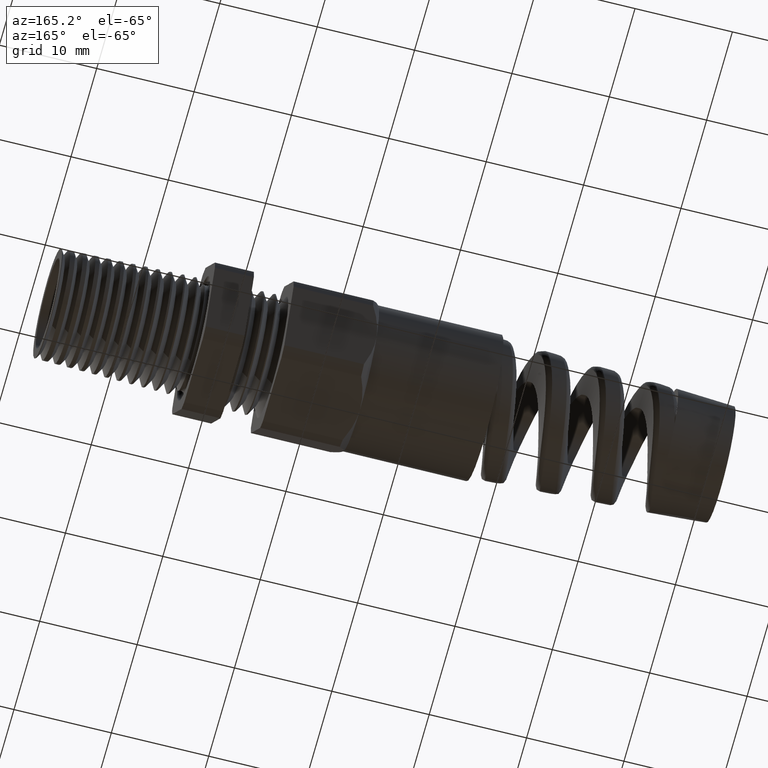
[diagram: clean part render]
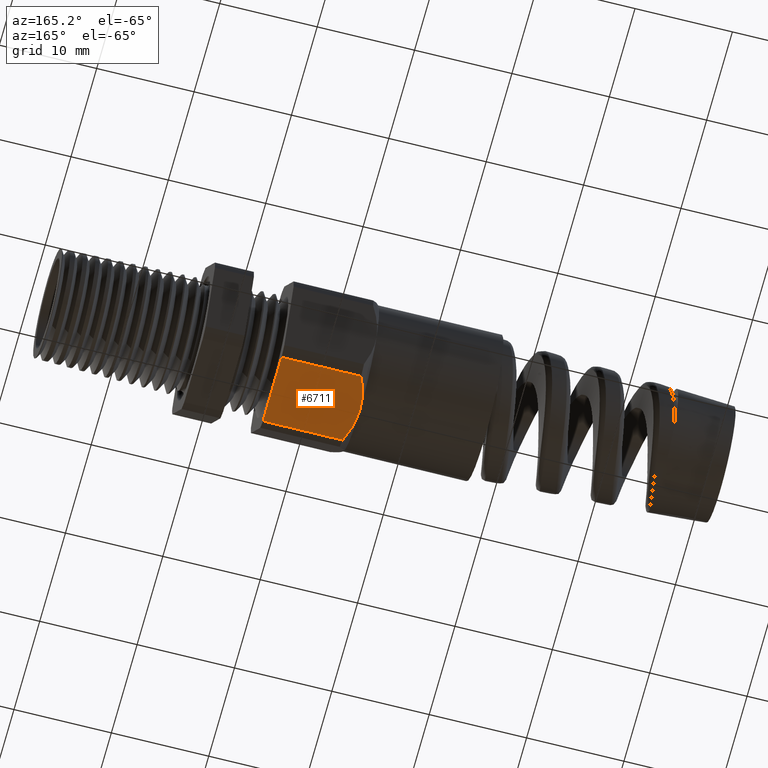
[diagram: same view with one face highlighted and labeled with its STEP entity id]
A machine part, auxiliary view. The second image highlights one B-rep face of the part: STEP entity #6711.
In plain terms, the highlighted planar face has unit normal (0, 0, -1).
Its self-contained STEP definition (entity closure, byte-faithful):
#558 = VERTEX_POINT ( 'NONE', #7945 ) ;
#2335 = DIRECTION ( 'NONE',  ( -1.000000000000000000, 0.0000000000000000000, 0.0000000000000000000 ) ) ;
#2336 = DIRECTION ( 'NONE',  ( 0.0000000000000000000, 0.0000000000000000000, -1.000000000000000000 ) ) ;
#2337 = CARTESIAN_POINT ( 'NONE',  ( 0.2800000000000001400, 0.1421214357512615400, -0.2950000000000000400 ) ) ;
#2338 = AXIS2_PLACEMENT_3D ( 'NONE', #2337, #2336, #2335 ) ;
#2340 = CARTESIAN_POINT ( 'NONE',  ( -0.9825196850393699300, 0.0000000000000000000, -0.2950000000000000400 ) ) ;
#2341 = CARTESIAN_POINT ( 'NONE',  ( -0.9825196850393699300, -0.02473358912122618900, -0.2950000000000001000 ) ) ;
#2342 = CARTESIAN_POINT ( 'NONE',  ( -0.9793819677769449700, -0.04889627699688063600, -0.2950000000000001000 ) ) ;
#2343 = CARTESIAN_POINT ( 'NONE',  ( -0.9680534100033613100, -0.09630224729656487700, -0.2950000000000001000 ) ) ;
#2344 = CARTESIAN_POINT ( 'NONE',  ( -0.9597914218120188200, -0.1197224029144733600, -0.2949999999999999800 ) ) ;
#2345 = CARTESIAN_POINT ( 'NONE',  ( -0.9500696850393698400, -0.1421214357512615700, -0.2950000000000000400 ) ) ;
#2346 = B_SPLINE_CURVE_WITH_KNOTS ( 'NONE', 3,
 ( #2345, #2344, #2343, #2342, #2341, #2340 ),
 .UNSPECIFIED., .F., .F.,
 ( 4, 2, 4 ),
 ( 0.005421624679763322800, 0.007269778929319367300, 0.009117933178875411000 ),
 .UNSPECIFIED. ) ;
#2347 = PLANE ( 'NONE',  #2338 ) ;
#2348 = FACE_OUTER_BOUND ( 'NONE', #6712, .T. ) ;
#2349 = CARTESIAN_POINT ( 'NONE',  ( -0.9500696850393698400, 0.1421214357512616000, -0.2950000000000000400 ) ) ;
#2350 = CARTESIAN_POINT ( 'NONE',  ( -0.9597825056839449600, 0.1197429458123298200, -0.2950000000000000400 ) ) ;
#2351 = CARTESIAN_POINT ( 'NONE',  ( -0.9680416460965800600, 0.09633948997954479300, -0.2949999999999999800 ) ) ;
#2352 = CARTESIAN_POINT ( 'NONE',  ( -0.9793751329988079600, 0.04893684351397717400, -0.2950000000000001500 ) ) ;
#2353 = CARTESIAN_POINT ( 'NONE',  ( -0.9825196850393699300, 0.02471049673043617500, -0.2950000000000000400 ) ) ;
#2354 = CARTESIAN_POINT ( 'NONE',  ( -0.9825196850393699300, 0.0000000000000000000, -0.2950000000000000400 ) ) ;
#2355 = B_SPLINE_CURVE_WITH_KNOTS ( 'NONE', 3,
 ( #2354, #2353, #2352, #2351, #2350, #2349 ),
 .UNSPECIFIED., .F., .F.,
 ( 4, 2, 4 ),
 ( 0.009117933178875411000, 0.01096436190853372100, 0.01281079063819203100 ),
 .UNSPECIFIED. ) ;
#2372 = DIRECTION ( 'NONE',  ( -1.000000000000000000, 0.0000000000000000000, 0.0000000000000000000 ) ) ;
#2373 = VECTOR ( 'NONE', #2372, 39.37007874015748100 ) ;
#2374 = CARTESIAN_POINT ( 'NONE',  ( 0.2800000000000001400, -0.1421214357512615400, -0.2950000000000000400 ) ) ;
#2375 = LINE ( 'NONE', #2374, #2373 ) ;
#2376 = CARTESIAN_POINT ( 'NONE',  ( -0.9500696850393698400, -0.1421214357512615700, -0.2950000000000000400 ) ) ;
#2385 = CARTESIAN_POINT ( 'NONE',  ( -0.6281889763779526800, -0.1421214357512615400, -0.2950000000000000400 ) ) ;
#3986 = CARTESIAN_POINT ( 'NONE',  ( -0.9500696850393698400, 0.1421214357512616000, -0.2950000000000000400 ) ) ;
#3989 = DIRECTION ( 'NONE',  ( 0.0000000000000000000, 1.000000000000000000, 0.0000000000000000000 ) ) ;
#3990 = VECTOR ( 'NONE', #3989, 39.37007874015748100 ) ;
#3991 = CARTESIAN_POINT ( 'NONE',  ( -0.6281889763779526800, 0.2450000000000000000, -0.2950000000000000400 ) ) ;
#3992 = LINE ( 'NONE', #3991, #3990 ) ;
#3993 = CARTESIAN_POINT ( 'NONE',  ( -0.6281889763779526800, 0.1421214357512616000, -0.2950000000000000400 ) ) ;
#3994 = DIRECTION ( 'NONE',  ( -1.000000000000000000, 0.0000000000000000000, 0.0000000000000000000 ) ) ;
#3995 = VECTOR ( 'NONE', #3994, 39.37007874015748100 ) ;
#3996 = CARTESIAN_POINT ( 'NONE',  ( 0.2800000000000001400, 0.1421214357512616000, -0.2950000000000000400 ) ) ;
#3997 = LINE ( 'NONE', #3996, #3995 ) ;
#6704 = ORIENTED_EDGE ( 'NONE', *, *, #6705, .T. ) ;
#6705 = EDGE_CURVE ( 'NONE', #558, #8401, #2355, .T. ) ;
#6708 = ORIENTED_EDGE ( 'NONE', *, *, #6709, .T. ) ;
#6709 = EDGE_CURVE ( 'NONE', #6719, #558, #2346, .T. ) ;
#6710 = ORIENTED_EDGE ( 'NONE', *, *, #6721, .T. ) ;
#6711 = ADVANCED_FACE ( 'NONE', ( #2348 ), #2347, .T. ) ;
#6712 = EDGE_LOOP ( 'NONE', ( #6710, #6708, #6704, #8391, #8370 ) ) ;
#6716 = VERTEX_POINT ( 'NONE', #2385 ) ;
#6719 = VERTEX_POINT ( 'NONE', #2376 ) ;
#6721 = EDGE_CURVE ( 'NONE', #6716, #6719, #2375, .T. ) ;
#7945 = CARTESIAN_POINT ( 'NONE',  ( -0.9825196850393699300, 0.0000000000000000000, -0.2950000000000000400 ) ) ;
#8369 = EDGE_CURVE ( 'NONE', #8383, #8401, #3997, .T. ) ;
#8370 = ORIENTED_EDGE ( 'NONE', *, *, #8387, .F. ) ;
#8383 = VERTEX_POINT ( 'NONE', #3993 ) ;
#8387 = EDGE_CURVE ( 'NONE', #6716, #8383, #3992, .T. ) ;
#8391 = ORIENTED_EDGE ( 'NONE', *, *, #8369, .F. ) ;
#8401 = VERTEX_POINT ( 'NONE', #3986 ) ;